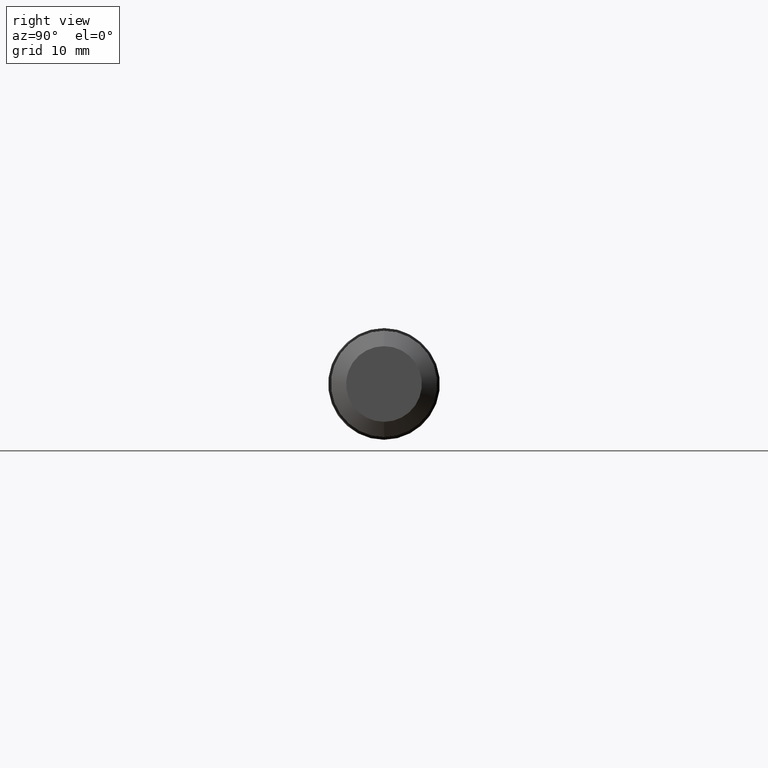
[diagram: clean part render]
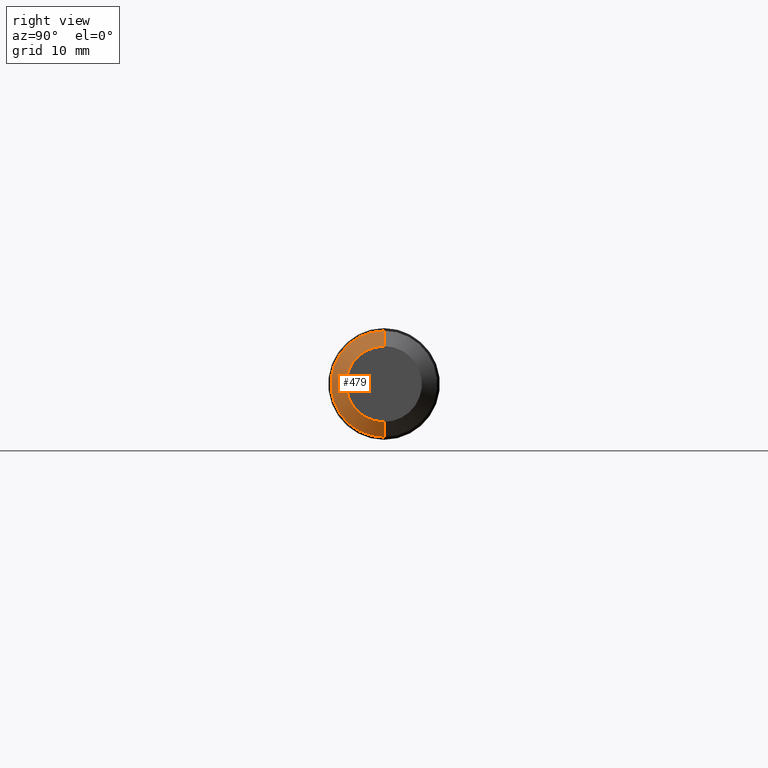
[diagram: same view with one face highlighted and labeled with its STEP entity id]
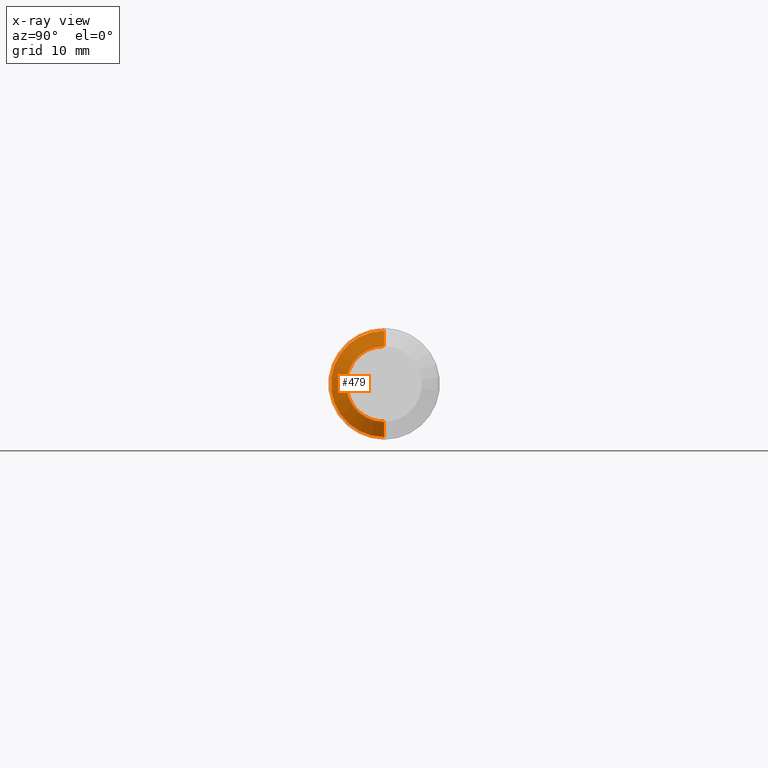
[diagram: x-ray of the same camera — body ghosted, the highlighted face saturated]
A machine part, right view. The second image highlights one B-rep face of the part: STEP entity #479.
The next image is the same camera in x-ray: the body ghosted, the highlighted face saturated — about 0% of this face is hidden behind the body in this view.
In plain terms, the highlighted conical surface has half-angle 60.15 deg.
Its self-contained STEP definition (entity closure, byte-faithful):
#22 = CARTESIAN_POINT ( 'NONE',  ( 4.000000000000000000, 2.596251214192379353E-17, -0.2119999999999992446 ) ) ;
#40 = VERTEX_POINT ( 'NONE', #128 ) ;
#54 = FACE_OUTER_BOUND ( 'NONE', #158, .T. ) ;
#55 = ORIENTED_EDGE ( 'NONE', *, *, #412, .F. ) ;
#60 = ORIENTED_EDGE ( 'NONE', *, *, #111, .F. ) ;
#67 = DIRECTION ( 'NONE',  ( 0.0000000000000000000, 0.0000000000000000000, 1.000000000000000000 ) ) ;
#81 = VERTEX_POINT ( 'NONE', #90 ) ;
#90 = CARTESIAN_POINT ( 'NONE',  ( 4.000000000000000000, 3.119787720827873230E-17, -0.2119999999999992446 ) ) ;
#111 = EDGE_CURVE ( 'NONE', #206, #425, #230, .T. ) ;
#112 = DIRECTION ( 'NONE',  ( -1.000000000000000000, -0.0000000000000000000, -0.0000000000000000000 ) ) ;
#115 = LINE ( 'NONE', #22, #143 ) ;
#116 = CARTESIAN_POINT ( 'NONE',  ( 4.000000000000000000, 0.0000000000000000000, 0.2119999999999992446 ) ) ;
#120 = EDGE_CURVE ( 'NONE', #81, #40, #188, .T. ) ;
#128 = CARTESIAN_POINT ( 'NONE',  ( 4.000000000000000000, 0.0000000000000000000, 0.2119999999999992446 ) ) ;
#137 = ORIENTED_EDGE ( 'NONE', *, *, #377, .T. ) ;
#143 = VECTOR ( 'NONE', #347, 39.37007874015748143 ) ;
#156 = CARTESIAN_POINT ( 'NONE',  ( 4.000000000000000000, 0.0000000000000000000, 0.0000000000000000000 ) ) ;
#158 = EDGE_LOOP ( 'NONE', ( #55, #273, #137, #60 ) ) ;
#188 = CIRCLE ( 'NONE', #286, 0.2119999999999992446 ) ;
#202 = DIRECTION ( 'NONE',  ( 0.0000000000000000000, 0.0000000000000000000, 1.000000000000000000 ) ) ;
#206 = VERTEX_POINT ( 'NONE', #344 ) ;
#214 = CARTESIAN_POINT ( 'NONE',  ( 4.000000000000000000, 0.0000000000000000000, 0.0000000000000000000 ) ) ;
#230 = CIRCLE ( 'NONE', #355, 0.2974999999999992650 ) ;
#273 = ORIENTED_EDGE ( 'NONE', *, *, #120, .T. ) ;
#286 = AXIS2_PLACEMENT_3D ( 'NONE', #156, #495, #378 ) ;
#309 = CARTESIAN_POINT ( 'NONE',  ( 3.950934553538009375, 0.0000000000000000000, 0.0000000000000000000 ) ) ;
#320 = DIRECTION ( 'NONE',  ( -0.4977310399126251839, 0.0000000000000000000, 0.8673314314075656339 ) ) ;
#329 = LINE ( 'NONE', #116, #358 ) ;
#344 = CARTESIAN_POINT ( 'NONE',  ( 3.950934553538009375, 3.643324227463366491E-17, -0.2974999999999992095 ) ) ;
#347 = DIRECTION ( 'NONE',  ( -0.4977310399126251839, 1.062174661273167376E-16, -0.8673314314075656339 ) ) ;
#355 = AXIS2_PLACEMENT_3D ( 'NONE', #309, #112, #67 ) ;
#358 = VECTOR ( 'NONE', #320, 39.37007874015748143 ) ;
#362 = AXIS2_PLACEMENT_3D ( 'NONE', #214, #418, #202 ) ;
#372 = CARTESIAN_POINT ( 'NONE',  ( 3.950934553538009375, 0.0000000000000000000, 0.2974999999999992095 ) ) ;
#377 = EDGE_CURVE ( 'NONE', #40, #425, #329, .T. ) ;
#378 = DIRECTION ( 'NONE',  ( 0.0000000000000000000, 0.0000000000000000000, 1.000000000000000000 ) ) ;
#412 = EDGE_CURVE ( 'NONE', #81, #206, #115, .T. ) ;
#418 = DIRECTION ( 'NONE',  ( -1.000000000000000000, -0.0000000000000000000, -0.0000000000000000000 ) ) ;
#425 = VERTEX_POINT ( 'NONE', #372 ) ;
#463 = CONICAL_SURFACE ( 'NONE', #362, 0.2119999999999992446, 1.049815545074574308 ) ;
#479 = ADVANCED_FACE ( 'NONE', ( #54 ), #463, .T. ) ;
#495 = DIRECTION ( 'NONE',  ( -1.000000000000000000, -0.0000000000000000000, -0.0000000000000000000 ) ) ;